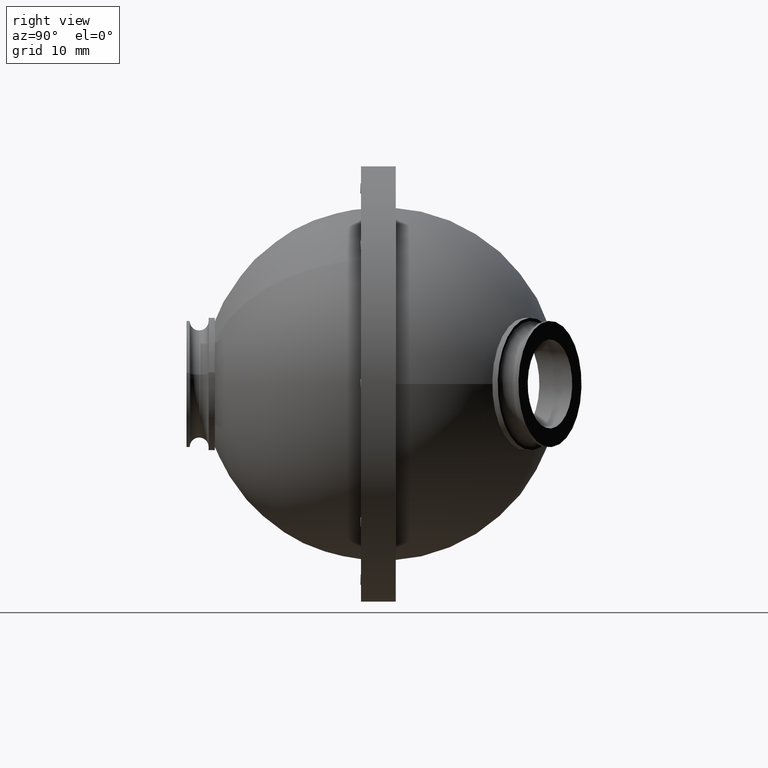
[diagram: clean part render]
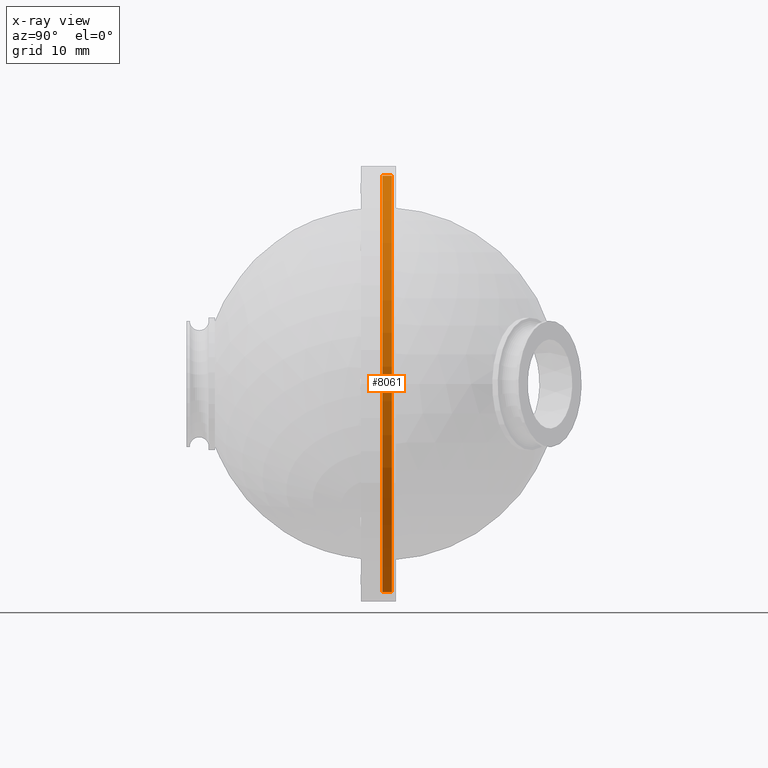
[diagram: x-ray — body ghosted, one internal face saturated and labeled with its STEP entity id]
A machine part, right view, then the same camera in x-ray: the body is ghosted and one INTERNAL B-rep face — a face not visible from any outside direction — is saturated and labeled: STEP entity #8061.
In plain terms, the highlighted cylindrical surface (partial cylindrical patch) has radius 33 mm, axis along (0, -1, 0).
Its self-contained STEP definition (entity closure, byte-faithful):
#52 = VERTEX_POINT ( 'NONE', #1849 ) ;
#284 = DIRECTION ( 'NONE',  ( 0.000000000000000000, -1.000000000000000000, 0.000000000000000000 ) ) ;
#615 = DIRECTION ( 'NONE',  ( 0.000000000000000000, 0.000000000000000000, -1.000000000000000000 ) ) ;
#928 = DIRECTION ( 'NONE',  ( 0.000000000000000000, -1.000000000000000000, 0.000000000000000000 ) ) ;
#1020 = LINE ( 'NONE', #1556, #4022 ) ;
#1317 = CARTESIAN_POINT ( 'NONE',  ( 8.484018949608310933, -17.91086588718419748, 33.00000000000000000 ) ) ;
#1556 = CARTESIAN_POINT ( 'NONE',  ( 8.484018949608310933, -16.41086588718419748, 33.00000000000000000 ) ) ;
#1656 = EDGE_CURVE ( 'NONE', #52, #6922, #4400, .T. ) ;
#1743 = AXIS2_PLACEMENT_3D ( 'NONE', #5043, #3733, #615 ) ;
#1849 = CARTESIAN_POINT ( 'NONE',  ( 8.484018949608307381, -16.41086588718419748, -33.00000000000000000 ) ) ;
#2023 = ORIENTED_EDGE ( 'NONE', *, *, #6936, .T. ) ;
#2186 = AXIS2_PLACEMENT_3D ( 'NONE', #3941, #5905, #4669 ) ;
#2317 = AXIS2_PLACEMENT_3D ( 'NONE', #5865, #3306, #6966 ) ;
#2843 = CARTESIAN_POINT ( 'NONE',  ( 8.484018949608307381, -17.91086588718419748, -33.00000000000000000 ) ) ;
#3306 = DIRECTION ( 'NONE',  ( 0.000000000000000000, -1.000000000000000000, 0.000000000000000000 ) ) ;
#3733 = DIRECTION ( 'NONE',  ( 0.000000000000000000, -1.000000000000000000, 0.000000000000000000 ) ) ;
#3941 = CARTESIAN_POINT ( 'NONE',  ( 8.484018949608307381, -16.41086588718419748, 0.000000000000000000 ) ) ;
#4022 = VECTOR ( 'NONE', #928, 1000.000000000000000 ) ;
#4039 = LINE ( 'NONE', #5921, #4263 ) ;
#4095 = VERTEX_POINT ( 'NONE', #1317 ) ;
#4263 = VECTOR ( 'NONE', #284, 1000.000000000000000 ) ;
#4400 = CIRCLE ( 'NONE', #2317, 33.00000000000000000 ) ;
#4669 = DIRECTION ( 'NONE',  ( 0.000000000000000000, 0.000000000000000000, -1.000000000000000000 ) ) ;
#5043 = CARTESIAN_POINT ( 'NONE',  ( 8.484018949608307381, -17.91086588718419748, 0.000000000000000000 ) ) ;
#5121 = FACE_OUTER_BOUND ( 'NONE', #5268, .T. ) ;
#5163 = CYLINDRICAL_SURFACE ( 'NONE', #2186, 33.00000000000000000 ) ;
#5268 = EDGE_LOOP ( 'NONE', ( #5663, #2023, #7421, #7849 ) ) ;
#5346 = EDGE_CURVE ( 'NONE', #6691, #4095, #6726, .T. ) ;
#5663 = ORIENTED_EDGE ( 'NONE', *, *, #1656, .T. ) ;
#5865 = CARTESIAN_POINT ( 'NONE',  ( 8.484018949608307381, -16.41086588718419748, 0.000000000000000000 ) ) ;
#5905 = DIRECTION ( 'NONE',  ( 0.000000000000000000, -1.000000000000000000, 0.000000000000000000 ) ) ;
#5921 = CARTESIAN_POINT ( 'NONE',  ( 8.484018949608307381, -16.41086588718419748, -33.00000000000000000 ) ) ;
#6172 = CARTESIAN_POINT ( 'NONE',  ( 8.484018949608310933, -16.41086588718419748, 33.00000000000000000 ) ) ;
#6691 = VERTEX_POINT ( 'NONE', #2843 ) ;
#6726 = CIRCLE ( 'NONE', #1743, 33.00000000000000000 ) ;
#6922 = VERTEX_POINT ( 'NONE', #6172 ) ;
#6936 = EDGE_CURVE ( 'NONE', #6922, #4095, #1020, .T. ) ;
#6966 = DIRECTION ( 'NONE',  ( 0.000000000000000000, 0.000000000000000000, -1.000000000000000000 ) ) ;
#7219 = EDGE_CURVE ( 'NONE', #52, #6691, #4039, .T. ) ;
#7421 = ORIENTED_EDGE ( 'NONE', *, *, #5346, .F. ) ;
#7849 = ORIENTED_EDGE ( 'NONE', *, *, #7219, .F. ) ;
#8061 = ADVANCED_FACE ( 'NONE', ( #5121 ), #5163, .T. ) ;